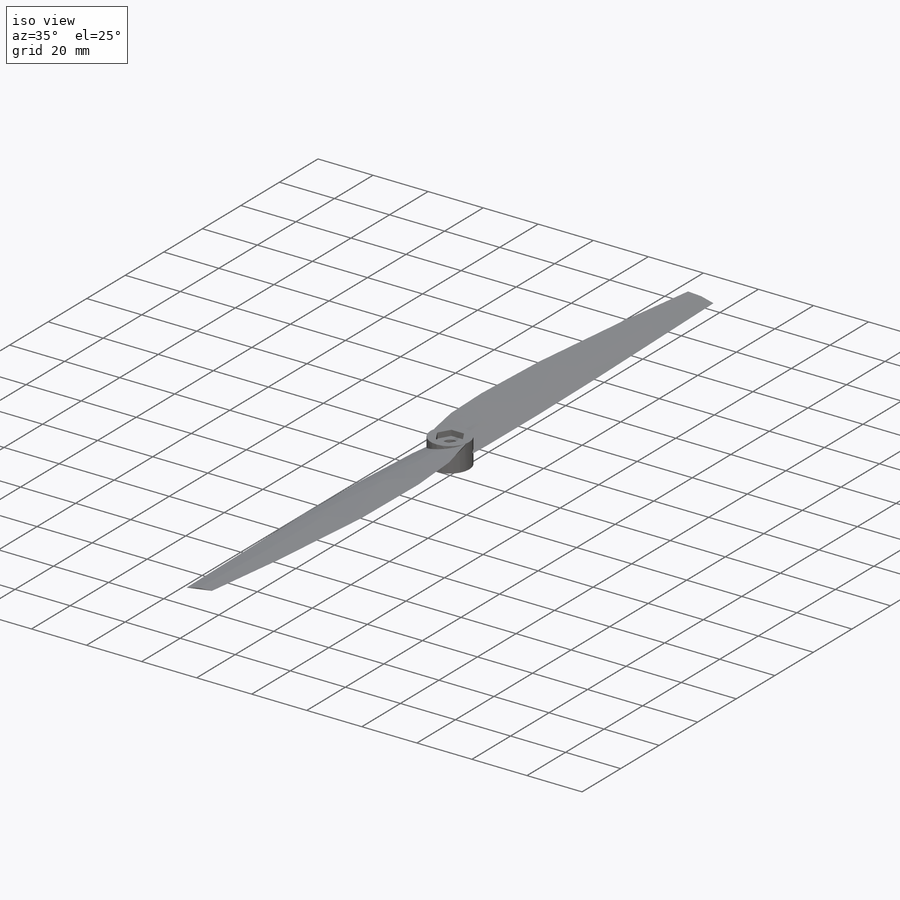
[diagram: iso view]
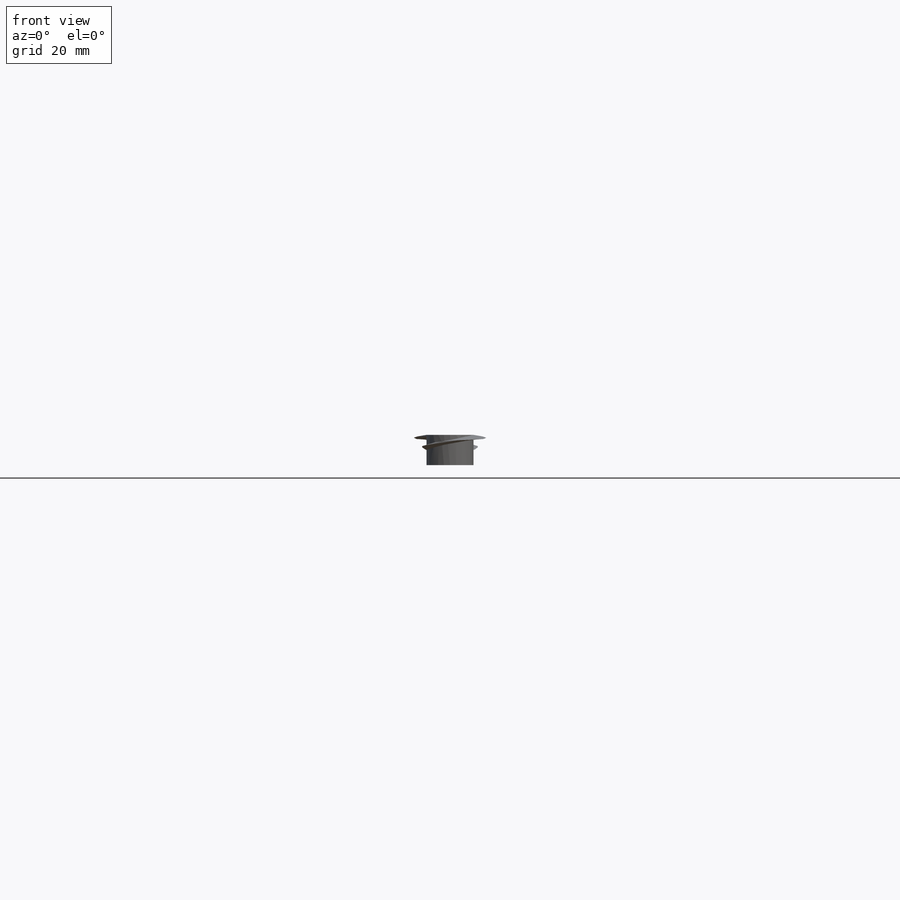
[diagram: front view]
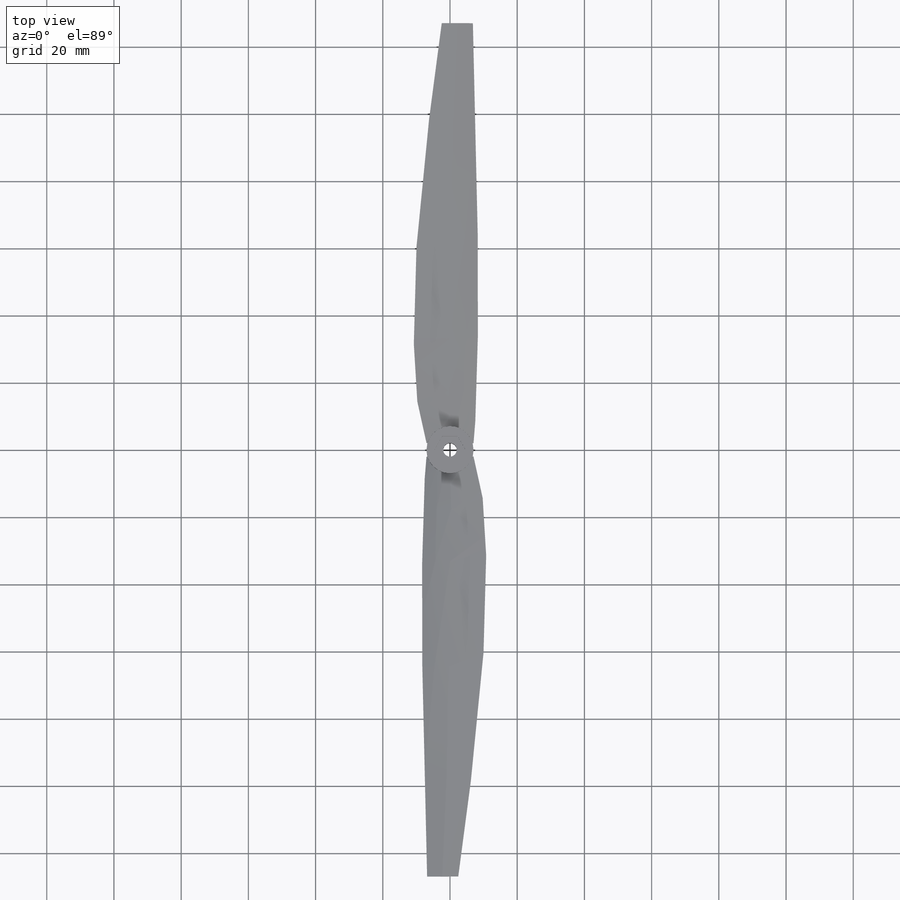
[diagram: top view]
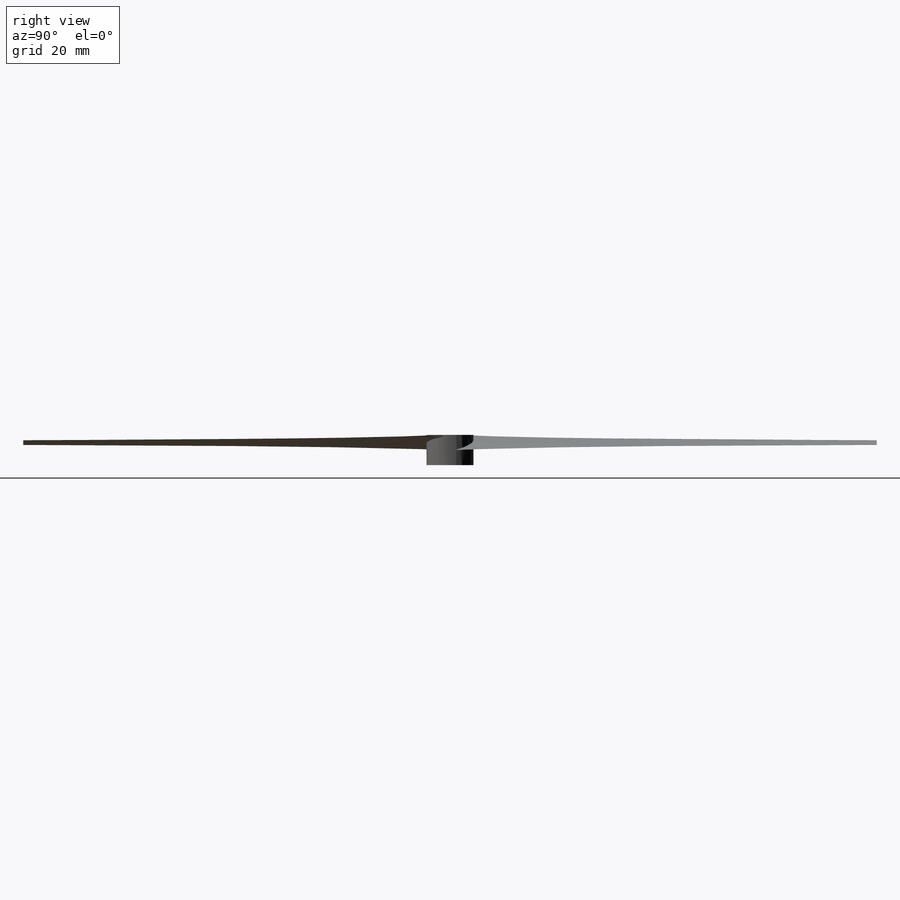
[diagram: right view]
SOLIDWORKS PART (.sldprt)
format: sldprt  version: not decoded by parser v0  size: 252,416 bytes
history: native  units: mm
features: sketch x7, material x6, cut_extrude x3, plane x1, extrude x1, pattern_circular x1 (+9 scaffold rows collapsed)
feature tree (28):
  scaffold x9  (default folders/planes/origin — collapsed)
  material  "Материал <не указан>"
  material  "Сверху"
  material  "Справа"
  material  "Плоскость1"
  material  "Плоскость2"
  material  "Плоскость3"
  plane  "Спереди"
  sketch  "Эскиз1"  dims[D1=14.0mm]
  extrude  "Бобышка-Вытянуть1"  Depth=9mm
  sketch  "Эскиз2"  dims[D1=8.0mm]
  sketch  "Эскиз6"
  sketch  "Эскиз7"
  sketch  "Эскиз8"
  pattern_circular  "Круговой массив2"  Count=2 Angle=180deg
  cut_extrude  "Вырез-Вытянуть7"  Depth=2mm
  sketch  "Эскиз11"
  cut_extrude  "Вырез-Вытянуть8"  Depth=2mm
  sketch  "Эскиз12"  dims[D1=4.0mm]
  cut_extrude  "Вырез-Вытянуть9"  [1 undecoded]
decode coverage: 7 of 12 modeling features carry decoded parameters
note: 1 parameter value undecoded
note: suppression state not decoded; provenance and decode notes live in map.json
